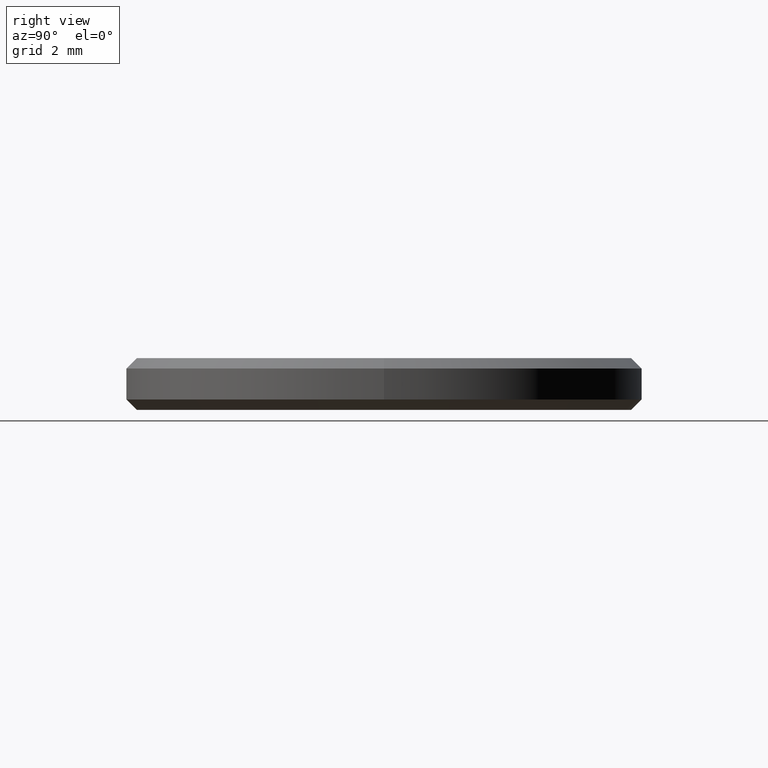
[diagram: clean part render]
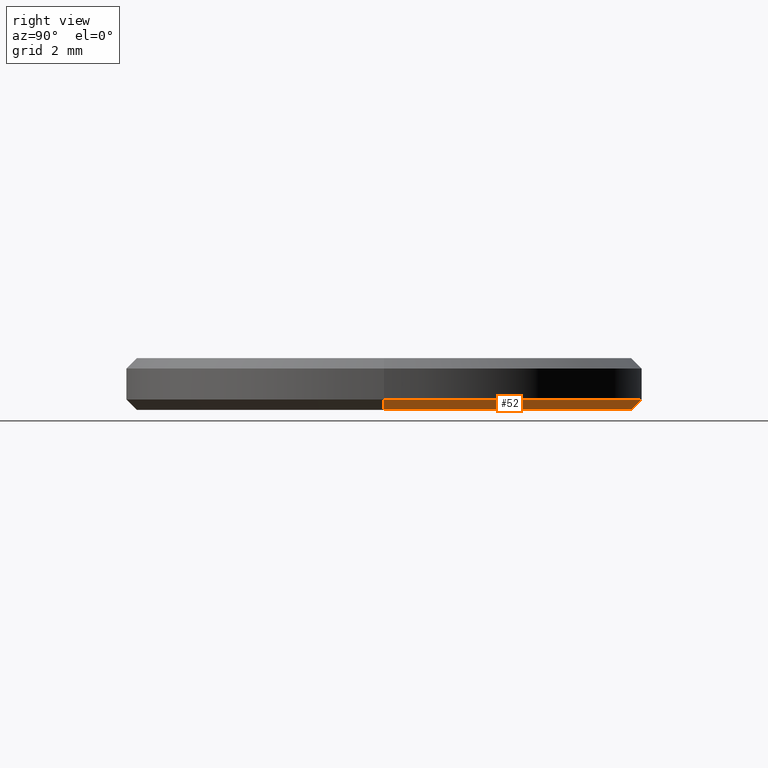
[diagram: same view with one face highlighted and labeled with its STEP entity id]
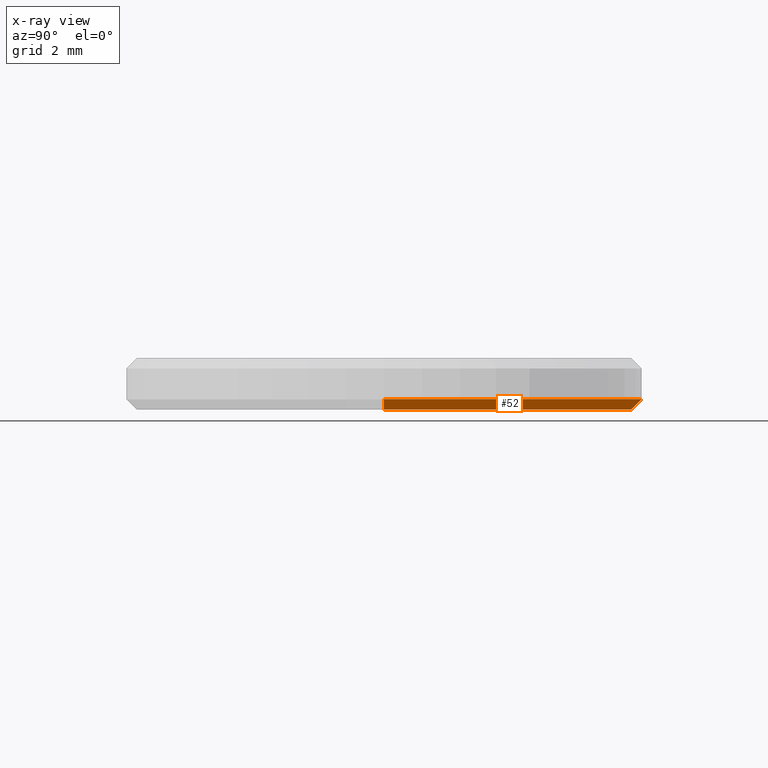
[diagram: x-ray of the same camera — body ghosted, the highlighted face saturated]
A machine part, right view. The second image highlights one B-rep face of the part: STEP entity #52.
The next image is the same camera in x-ray: the body ghosted, the highlighted face saturated — about 0% of this face is hidden behind the body in this view.
In plain terms, the highlighted conical surface has half-angle 45 deg.
Its self-contained STEP definition (entity closure, byte-faithful):
#7 = DIRECTION ( 'NONE',  ( 0.7071067811865490160, 0.000000000000000000, 0.7071067811865459074 ) ) ;
#18 = ORIENTED_EDGE ( 'NONE', *, *, #148, .F. ) ;
#22 = CIRCLE ( 'NONE', #149, 5.000000000000000000 ) ;
#25 = AXIS2_PLACEMENT_3D ( 'NONE', #28, #103, #63 ) ;
#28 = CARTESIAN_POINT ( 'NONE',  ( 0.000000000000000000, 0.000000000000000000, 0.000000000000000000 ) ) ;
#29 = DIRECTION ( 'NONE',  ( 1.000000000000000000, 0.000000000000000000, 0.000000000000000000 ) ) ;
#35 = FACE_OUTER_BOUND ( 'NONE', #240, .T. ) ;
#36 = CARTESIAN_POINT ( 'NONE',  ( 4.799999999999999822, 0.000000000000000000, 0.000000000000000000 ) ) ;
#51 = VECTOR ( 'NONE', #239, 1000.000000000000000 ) ;
#52 = ADVANCED_FACE ( 'NONE', ( #35 ), #191, .T. ) ;
#61 = LINE ( 'NONE', #199, #51 ) ;
#63 = DIRECTION ( 'NONE',  ( 1.000000000000000000, 0.000000000000000000, 0.000000000000000000 ) ) ;
#79 = CARTESIAN_POINT ( 'NONE',  ( 5.000000000000000000, 0.000000000000000000, 0.1999999999999996503 ) ) ;
#80 = EDGE_CURVE ( 'NONE', #110, #127, #22, .T. ) ;
#92 = CARTESIAN_POINT ( 'NONE',  ( 0.000000000000000000, 0.000000000000000000, 0.1999999999999996503 ) ) ;
#93 = VERTEX_POINT ( 'NONE', #36 ) ;
#95 = CARTESIAN_POINT ( 'NONE',  ( -5.000000000000000000, 0.000000000000000000, 0.1999999999999996503 ) ) ;
#99 = CARTESIAN_POINT ( 'NONE',  ( 0.000000000000000000, 0.000000000000000000, 0.1999999999999996503 ) ) ;
#103 = DIRECTION ( 'NONE',  ( -0.000000000000000000, -0.000000000000000000, -1.000000000000000000 ) ) ;
#105 = AXIS2_PLACEMENT_3D ( 'NONE', #92, #187, #29 ) ;
#106 = ORIENTED_EDGE ( 'NONE', *, *, #80, .F. ) ;
#109 = CARTESIAN_POINT ( 'NONE',  ( 5.000000000000000000, 6.123233995736766282E-16, 0.1999999999999996503 ) ) ;
#110 = VERTEX_POINT ( 'NONE', #109 ) ;
#127 = VERTEX_POINT ( 'NONE', #95 ) ;
#130 = DIRECTION ( 'NONE',  ( 1.000000000000000000, 0.000000000000000000, 0.000000000000000000 ) ) ;
#131 = EDGE_CURVE ( 'NONE', #215, #127, #61, .T. ) ;
#141 = ORIENTED_EDGE ( 'NONE', *, *, #224, .F. ) ;
#148 = EDGE_CURVE ( 'NONE', #215, #93, #178, .T. ) ;
#149 = AXIS2_PLACEMENT_3D ( 'NONE', #99, #200, #130 ) ;
#150 = CARTESIAN_POINT ( 'NONE',  ( -4.799999999999999822, 6.000769315822029754E-16, 0.000000000000000000 ) ) ;
#152 = ORIENTED_EDGE ( 'NONE', *, *, #131, .T. ) ;
#158 = VECTOR ( 'NONE', #7, 1000.000000000000000 ) ;
#161 = LINE ( 'NONE', #79, #158 ) ;
#178 = CIRCLE ( 'NONE', #25, 4.799999999999999822 ) ;
#187 = DIRECTION ( 'NONE',  ( -0.000000000000000000, -0.000000000000000000, 1.000000000000000000 ) ) ;
#191 = CONICAL_SURFACE ( 'NONE', #105, 5.000000000000000000, 0.7853981633974503884 ) ;
#199 = CARTESIAN_POINT ( 'NONE',  ( -5.000000000000000000, 6.123233995736765296E-16, 0.1999999999999996503 ) ) ;
#200 = DIRECTION ( 'NONE',  ( -0.000000000000000000, -0.000000000000000000, 1.000000000000000000 ) ) ;
#215 = VERTEX_POINT ( 'NONE', #150 ) ;
#224 = EDGE_CURVE ( 'NONE', #93, #110, #161, .T. ) ;
#239 = DIRECTION ( 'NONE',  ( -0.7071067811865490160, 8.659560562354950115E-17, 0.7071067811865459074 ) ) ;
#240 = EDGE_LOOP ( 'NONE', ( #18, #152, #106, #141 ) ) ;